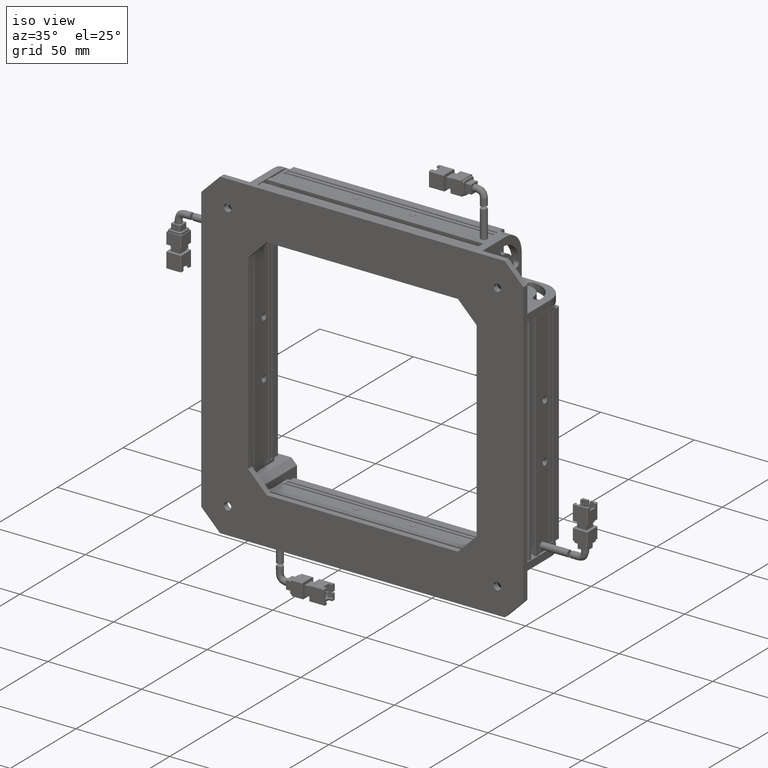
[diagram: clean part render]
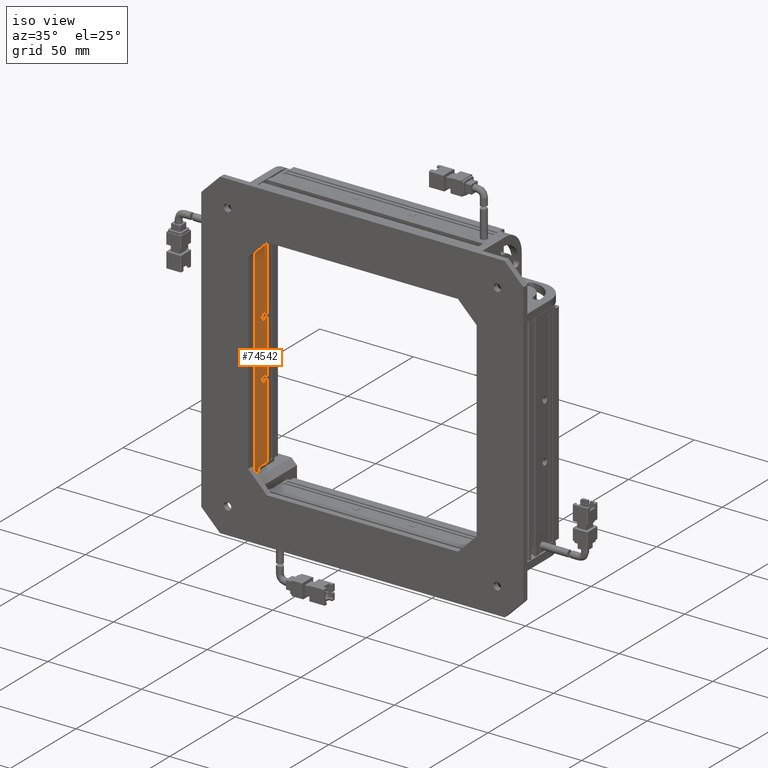
[diagram: same view with one face highlighted and labeled with its STEP entity id]
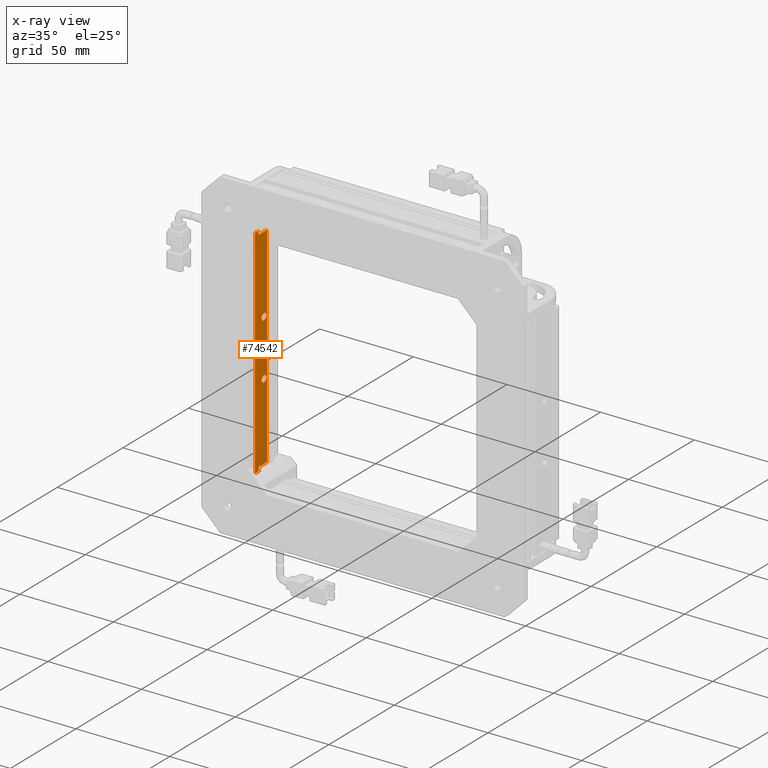
[diagram: x-ray of the same camera — body ghosted, the highlighted face saturated]
A machine part, iso view. The second image highlights one B-rep face of the part: STEP entity #74542.
The next image is the same camera in x-ray: the body ghosted, the highlighted face saturated — about 0% of this face is hidden behind the body in this view.
In plain terms, the highlighted planar face has unit normal (1, -0, 0).
Its self-contained STEP definition (entity closure, byte-faithful):
#529 = AXIS2_PLACEMENT_3D ( 'NONE', #51274, #124463, #61813 ) ;
#1270 = VERTEX_POINT ( 'NONE', #94013 ) ;
#1973 = VERTEX_POINT ( 'NONE', #39327 ) ;
#2371 = EDGE_CURVE ( 'NONE', #48463, #83683, #65408, .T. ) ;
#3991 = VERTEX_POINT ( 'NONE', #134631 ) ;
#4551 = EDGE_CURVE ( 'NONE', #3991, #93345, #129664, .T. ) ;
#4912 = ORIENTED_EDGE ( 'NONE', *, *, #53324, .T. ) ;
#6246 = DIRECTION ( 'NONE',  ( 4.348783540041898000E-016, -6.435991132435456900E-016, -1.000000000000000000 ) ) ;
#7011 = LINE ( 'NONE', #131340, #31576 ) ;
#7251 = LINE ( 'NONE', #134538, #18685 ) ;
#7623 = CARTESIAN_POINT ( 'NONE',  ( -64.49999999999975800, 16.40000000000010500, 56.00000000000000700 ) ) ;
#12066 = VERTEX_POINT ( 'NONE', #7623 ) ;
#12080 = EDGE_LOOP ( 'NONE', ( #4912, #18560 ) ) ;
#13997 = FACE_BOUND ( 'NONE', #12080, .T. ) ;
#15016 = CARTESIAN_POINT ( 'NONE',  ( -64.49999999999971600, -2.506934854693901600, -57.99999999999999300 ) ) ;
#17271 = FACE_BOUND ( 'NONE', #81532, .T. ) ;
#18560 = ORIENTED_EDGE ( 'NONE', *, *, #130959, .T. ) ;
#18685 = VECTOR ( 'NONE', #123937, 1000.000000000000000 ) ;
#19245 = AXIS2_PLACEMENT_3D ( 'NONE', #25963, #99212, #36412 ) ;
#21142 = LINE ( 'NONE', #15016, #90037 ) ;
#21641 = CARTESIAN_POINT ( 'NONE',  ( -64.50000000009113400, 14.10000000000008000, 13.19999999994023900 ) ) ;
#22840 = ORIENTED_EDGE ( 'NONE', *, *, #88616, .T. ) ;
#24282 = ORIENTED_EDGE ( 'NONE', *, *, #124986, .T. ) ;
#25963 = CARTESIAN_POINT ( 'NONE',  ( -64.50000000009113400, 14.10000000000008100, 14.99999999999999300 ) ) ;
#26661 = ORIENTED_EDGE ( 'NONE', *, *, #73198, .T. ) ;
#27638 = LINE ( 'NONE', #82950, #135704 ) ;
#30410 = VERTEX_POINT ( 'NONE', #108657 ) ;
#31576 = VECTOR ( 'NONE', #58068, 1000.000000000000000 ) ;
#32507 = AXIS2_PLACEMENT_3D ( 'NONE', #39674, #112887, #50188 ) ;
#35171 = AXIS2_PLACEMENT_3D ( 'NONE', #131714, #68993, #6246 ) ;
#36412 = DIRECTION ( 'NONE',  ( 0.0000000000000000000, -9.637352643995668300E-016, -1.000000000000000000 ) ) ;
#39327 = CARTESIAN_POINT ( 'NONE',  ( -64.50000000002063400, 14.10000000000006200, -13.20000000001073700 ) ) ;
#39674 = CARTESIAN_POINT ( 'NONE',  ( -64.50000000009113400, 14.10000000000008100, 14.99999999999999300 ) ) ;
#40468 = CARTESIAN_POINT ( 'NONE',  ( -64.49999999999971600, 7.200000000000034800, -58.00000000000000000 ) ) ;
#41377 = EDGE_LOOP ( 'NONE', ( #26661, #97682, #24282, #78245, #123961, #118999, #74162, #103050 ) ) ;
#43898 = LINE ( 'NONE', #65803, #71748 ) ;
#46078 = CARTESIAN_POINT ( 'NONE',  ( -64.49999999999971600, 25.40000000000004100, -56.00000000000002100 ) ) ;
#47570 = CARTESIAN_POINT ( 'NONE',  ( -64.49999999999971600, 9.900000000000027000, -58.00000000000001400 ) ) ;
#48463 = VERTEX_POINT ( 'NONE', #84039 ) ;
#49239 = CARTESIAN_POINT ( 'NONE',  ( -64.49999999999977300, 9.900000000000103400, 58.00000000000000000 ) ) ;
#50188 = DIRECTION ( 'NONE',  ( 0.0000000000000000000, -9.637352643995668300E-016, -1.000000000000000000 ) ) ;
#50366 = AXIS2_PLACEMENT_3D ( 'NONE', #113335, #50656, #123839 ) ;
#50656 = DIRECTION ( 'NONE',  ( -1.000000000000000000, 1.110223024625152700E-016, -4.348783540041898500E-016 ) ) ;
#51274 = CARTESIAN_POINT ( 'NONE',  ( -64.50000000002063400, 14.10000000000006000, -15.00000000000000700 ) ) ;
#53324 = EDGE_CURVE ( 'NONE', #109736, #1973, #129747, .T. ) ;
#54986 = VERTEX_POINT ( 'NONE', #93316 ) ;
#56063 = CARTESIAN_POINT ( 'NONE',  ( -64.49999999999971600, 9.900000000000028800, -58.00000000000000000 ) ) ;
#58068 = DIRECTION ( 'NONE',  ( -4.348783540041898000E-016, 6.435991132435456900E-016, 1.000000000000000000 ) ) ;
#61813 = DIRECTION ( 'NONE',  ( 0.0000000000000000000, -9.637352644373053400E-016, -1.000000000000000000 ) ) ;
#62300 = DIRECTION ( 'NONE',  ( -1.110223024625155600E-016, -1.000000000000000000, 6.435991132435456900E-016 ) ) ;
#63070 = EDGE_CURVE ( 'NONE', #12066, #3991, #7251, .T. ) ;
#65408 = CIRCLE ( 'NONE', #32507, 1.800000000059753800 ) ;
#65803 = CARTESIAN_POINT ( 'NONE',  ( -64.49999999999971600, 9.900000000000028800, -58.00000000000000000 ) ) ;
#67044 = DIRECTION ( 'NONE',  ( -4.348783540041898000E-016, 6.435991132435456900E-016, 1.000000000000000000 ) ) ;
#68993 = DIRECTION ( 'NONE',  ( 1.000000000000000000, -1.110223024625152700E-016, 4.348783540041898500E-016 ) ) ;
#70641 = EDGE_CURVE ( 'NONE', #30410, #1270, #125277, .T. ) ;
#71748 = VECTOR ( 'NONE', #128487, 1000.000000000000000 ) ;
#73198 = EDGE_CURVE ( 'NONE', #1270, #85489, #21142, .T. ) ;
#73985 = VECTOR ( 'NONE', #67044, 1000.000000000000000 ) ;
#74162 = ORIENTED_EDGE ( 'NONE', *, *, #85207, .T. ) ;
#74542 = ADVANCED_FACE ( 'NONE', ( #128602, #13997, #17271 ), #79116, .T. ) ;
#78135 = DIRECTION ( 'NONE',  ( 1.110223024625155600E-016, 1.000000000000000000, -6.435991132435456900E-016 ) ) ;
#78245 = ORIENTED_EDGE ( 'NONE', *, *, #121929, .T. ) ;
#79116 = PLANE ( 'NONE',  #35171 ) ;
#81532 = EDGE_LOOP ( 'NONE', ( #22840, #103142 ) ) ;
#82950 = CARTESIAN_POINT ( 'NONE',  ( -64.49999999999975800, -2.506934854693827000, 58.00000000000000700 ) ) ;
#83683 = VERTEX_POINT ( 'NONE', #21641 ) ;
#84039 = CARTESIAN_POINT ( 'NONE',  ( -64.50000000009113400, 14.10000000000008300, 16.80000000005974700 ) ) ;
#85207 = EDGE_CURVE ( 'NONE', #93345, #30410, #27638, .T. ) ;
#85489 = VERTEX_POINT ( 'NONE', #47570 ) ;
#86847 = EDGE_CURVE ( 'NONE', #85489, #100979, #43898, .T. ) ;
#88616 = EDGE_CURVE ( 'NONE', #83683, #48463, #116360, .T. ) ;
#90037 = VECTOR ( 'NONE', #97434, 1000.000000000000000 ) ;
#93160 = DIRECTION ( 'NONE',  ( 4.348783540041898000E-016, -6.435991132435456900E-016, -1.000000000000000000 ) ) ;
#93316 = CARTESIAN_POINT ( 'NONE',  ( -64.49999999999971600, 16.40000000000003800, -56.00000000000002100 ) ) ;
#93345 = VERTEX_POINT ( 'NONE', #49239 ) ;
#94013 = CARTESIAN_POINT ( 'NONE',  ( -64.49999999999971600, 7.200000000000034800, -58.00000000000000000 ) ) ;
#97434 = DIRECTION ( 'NONE',  ( 1.110223024625155600E-016, 1.000000000000000000, -6.435991132435456900E-016 ) ) ;
#97531 = VECTOR ( 'NONE', #93160, 1000.000000000000000 ) ;
#97682 = ORIENTED_EDGE ( 'NONE', *, *, #86847, .T. ) ;
#99212 = DIRECTION ( 'NONE',  ( -1.000000000000000000, 1.110223024625152700E-016, -4.348783540041898500E-016 ) ) ;
#100979 = VERTEX_POINT ( 'NONE', #121561 ) ;
#103050 = ORIENTED_EDGE ( 'NONE', *, *, #70641, .T. ) ;
#103142 = ORIENTED_EDGE ( 'NONE', *, *, #2371, .T. ) ;
#106484 = VECTOR ( 'NONE', #78135, 1000.000000000000000 ) ;
#108657 = CARTESIAN_POINT ( 'NONE',  ( -64.49999999999975800, 7.200000000000111200, 58.00000000000000000 ) ) ;
#109736 = VERTEX_POINT ( 'NONE', #120945 ) ;
#112887 = DIRECTION ( 'NONE',  ( -1.000000000000000000, 1.110223024625152700E-016, -4.348783540041898500E-016 ) ) ;
#113335 = CARTESIAN_POINT ( 'NONE',  ( -64.50000000002063400, 14.10000000000006000, -15.00000000000000700 ) ) ;
#116360 = CIRCLE ( 'NONE', #19245, 1.800000000059753800 ) ;
#118999 = ORIENTED_EDGE ( 'NONE', *, *, #4551, .T. ) ;
#120945 = CARTESIAN_POINT ( 'NONE',  ( -64.50000000002063400, 14.10000000000005800, -16.79999999998927500 ) ) ;
#121561 = CARTESIAN_POINT ( 'NONE',  ( -64.49999999999971600, 9.900000000000028800, -56.00000000000001400 ) ) ;
#121929 = EDGE_CURVE ( 'NONE', #54986, #12066, #7011, .T. ) ;
#123839 = DIRECTION ( 'NONE',  ( 0.0000000000000000000, -9.637352644373053400E-016, -1.000000000000000000 ) ) ;
#123937 = DIRECTION ( 'NONE',  ( -1.110223024625155600E-016, -1.000000000000000000, 6.435991132435456900E-016 ) ) ;
#123961 = ORIENTED_EDGE ( 'NONE', *, *, #63070, .T. ) ;
#124463 = DIRECTION ( 'NONE',  ( -1.000000000000000000, 1.110223024625152700E-016, -4.348783540041898500E-016 ) ) ;
#124986 = EDGE_CURVE ( 'NONE', #100979, #54986, #134346, .T. ) ;
#125277 = LINE ( 'NONE', #40468, #97531 ) ;
#125477 = CIRCLE ( 'NONE', #529, 1.799999999989268400 ) ;
#128487 = DIRECTION ( 'NONE',  ( -4.348783540041898000E-016, 6.435991132435456900E-016, 1.000000000000000000 ) ) ;
#128602 = FACE_OUTER_BOUND ( 'NONE', #41377, .T. ) ;
#129664 = LINE ( 'NONE', #56063, #73985 ) ;
#129747 = CIRCLE ( 'NONE', #50366, 1.799999999989268400 ) ;
#130959 = EDGE_CURVE ( 'NONE', #1973, #109736, #125477, .T. ) ;
#131340 = CARTESIAN_POINT ( 'NONE',  ( -64.49999999999971600, 16.40000000000003400, -58.00000000000000700 ) ) ;
#131714 = CARTESIAN_POINT ( 'NONE',  ( -64.49999999999971600, -2.506934854693901600, -57.99999999999999300 ) ) ;
#134346 = LINE ( 'NONE', #46078, #106484 ) ;
#134538 = CARTESIAN_POINT ( 'NONE',  ( -64.49999999999975800, -2.506934854693828400, 56.00000000000002100 ) ) ;
#134631 = CARTESIAN_POINT ( 'NONE',  ( -64.49999999999975800, 9.900000000000101600, 56.00000000000001400 ) ) ;
#135704 = VECTOR ( 'NONE', #62300, 1000.000000000000000 ) ;